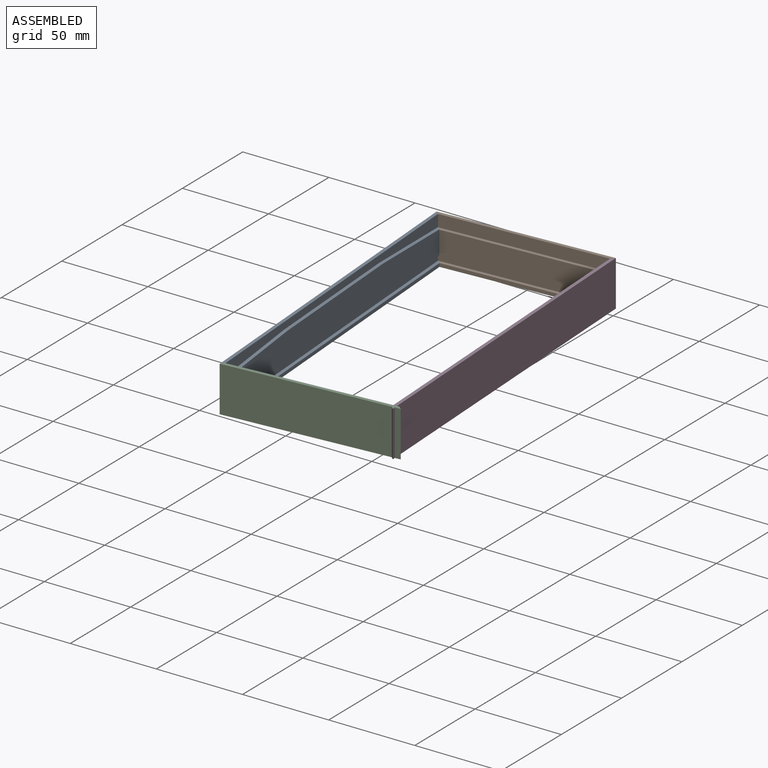
[diagram: assembled view]
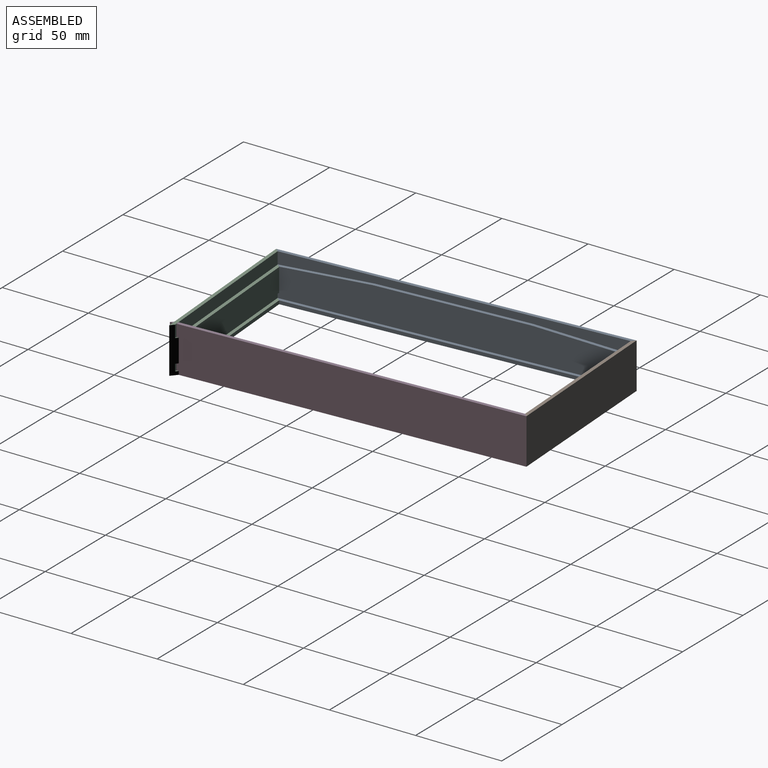
[diagram: assembled view, second angle]
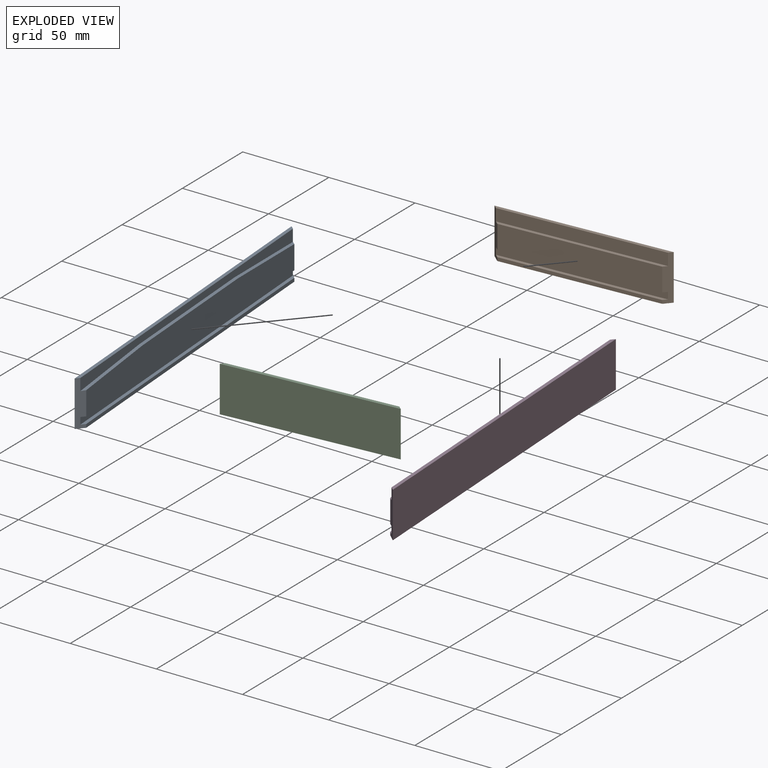
[diagram: exploded view]
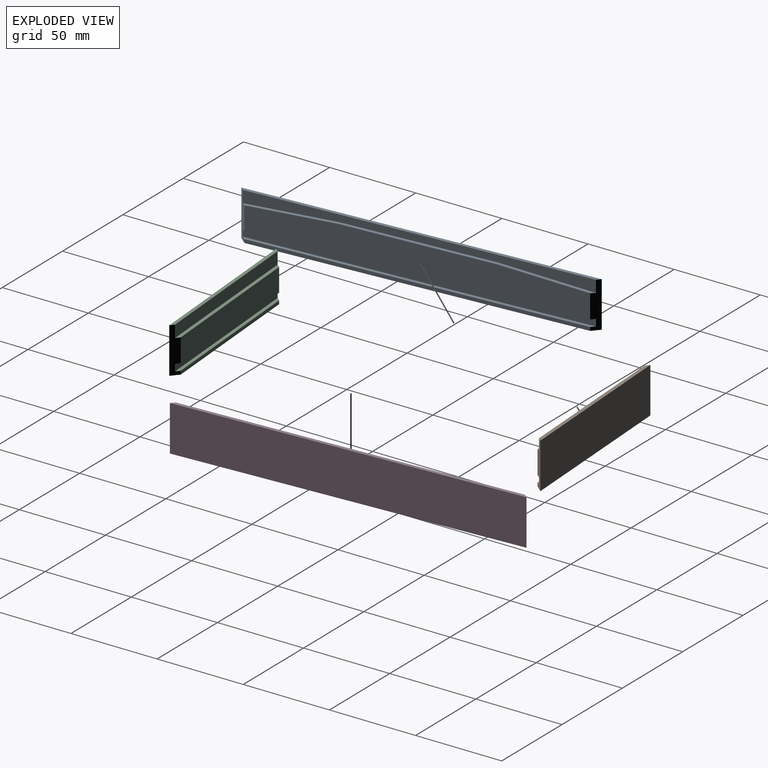
[diagram: exploded view, second angle]
ASSEMBLY  parts=4 mates=4
PART A: 14 faces, bbox 200x4x26.5 mm
  f0: plane 191.86x2mm, normal (0,1,0), area 383.7mm2, adj f1,f6,f12,f13
  f1: plane 200x4mm, normal (0,0,-1), area 783.7mm2, adj f0,f9,f12,f13
  f2: plane 191.86x16.5mm, normal (0,1,0), area 3021.2mm2, adj f4,f7,f10,f11,f12,f13
  f3: plane 200x2mm, normal (0,0,1), area 395.9mm2, adj f5,f9,f12,f13
  f4: plane 53.96x2.89mm, normal (-0.05,0,1), area 106mm2, adj f2,f5,f11,f13
  f5: plane 195.93x6.89mm, normal (0,1,0), area 939.7mm2, adj f3,f4,f10,f11,f12,f13
  f6: plane 195.93x2mm, normal (0,0,1), area 387.8mm2, adj f0,f8,f12,f13
  f7: plane 195.93x2mm, normal (0,0,-1), area 387.8mm2, adj f2,f8,f12,f13
  f8: plane 195.93x4mm, normal (0,1,0), area 783.7mm2, adj f6,f7,f12,f13
  f9: plane 200x26.5mm, normal (0,-1,0), area 5300mm2, adj f1,f3,f12,f13
  f10: plane 53.97x2.89mm, normal (0.05,0,1), area 106.1mm2, adj f2,f5,f11,f12
  f11: plane 88x2mm, normal (0,0,1), area 176mm2, adj f2,f4,f5,f10
  f12: plane 26.5x4.07mm, normal (0.7,0.71,0), area 120.2mm2, adj f0,f1,f2,f3,f5,f6,f7,f8
  f13: plane 26.5x4.07mm, normal (-0.7,0.71,0), area 120.3mm2, adj f0,f1,f2,f3,f4,f5,f6,f7
PART B: 12 faces, bbox 100x4x26.5 mm
  f0: plane 92x13.5mm, normal (0,1,0), area 1242mm2, adj f5,f7,f10,f11
  f1: plane 92x2mm, normal (0,1,0), area 184mm2, adj f2,f4,f10,f11
  f2: plane 100x4mm, normal (0,0,-1), area 384mm2, adj f1,f9,f10,f11
  f3: plane 100x2mm, normal (0,0,1), area 196mm2, adj f8,f9,f10,f11
  f4: plane 96x2mm, normal (0,0,1), area 188mm2, adj f1,f6,f10,f11
  f5: plane 96x2mm, normal (0,0,-1), area 188mm2, adj f0,f6,f10,f11
  f6: plane 96x4mm, normal (0,1,0), area 384mm2, adj f4,f5,f10,f11
  f7: plane 96x2mm, normal (0,0,1), area 188mm2, adj f0,f8,f10,f11
  f8: plane 96x7mm, normal (0,1,0), area 672mm2, adj f3,f7,f10,f11
  f9: plane 100x26.5mm, normal (0,-1,0), area 2650mm2, adj f2,f3,f10,f11
  f10: plane 26.5x4mm, normal (-0.71,0.71,0), area 118.8mm2, adj f0,f1,f2,f3,f4,f5,f6,f7
  f11: plane 26.5x4mm, normal (0.71,0.71,0), area 118.8mm2, adj f0,f1,f2,f3,f4,f5,f6,f7
PART C: same geometry as B
PART D: same geometry as A
PLACE A rot(axis=(0,0,-1),86deg) t=(-42.79,220.78,-1.91)mm
PLACE B rot(axis=(0,0,-1),176.6deg) t=(53.3,222.51,-1.88)mm
PLACE C rot(axis=(0,0,1),4.4deg) t=(-33.27,24.99,-1.88)mm
PLACE D rot(axis=(0,0,1),93deg) t=(59.47,26.58,-1.91)mm
MATE fastened B.f11 <-> A.f13  axis (-0.66,-0.75,0) through (-44.92,218.86,10.62)mm
MATE fastened C.f10 <-> A.f12  axis (-0.76,0.65,0) through (-31.36,22.87,10.62)mm
MATE fastened D.f12 <-> B.f10  axis (-0.75,0.66,0) through (51.43,224.66,10.62)mm
MATE fastened B.f10 <-> D.f12  axis (0.75,-0.66,0) through (51.43,224.66,10.62)mm
